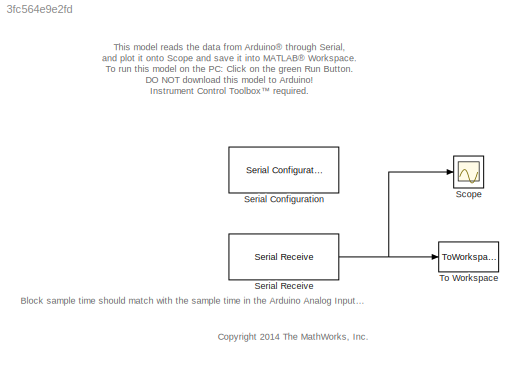
MODEL slx_3fc564e9e2fd
KIND model
BLOCK [Scope] Scope
  DataFormat = StructureWithTime
  Floating = off
  NumInputPorts = 1
  Ports = [1]
  SampleTime = 0
  ShowLegends = off
  TimeRange = 10
  YMax = 150
  YMin = 0
BLOCK [Reference] Serial Configuration  REF=instrumentlib/Serial Configuration
  BaudRate = 9600
  ByteOrder = LittleEndian
  ComPort = COM21
  ComPortMenu = <Please select a port...>
  DataBits = 8
  FlowControl = none
  ObjConstructor = serial('COM21');
  Parity = none
  Ports = []
  Priority = -200000
  SourceBlock = instrumentlib/Serial Configuration
  SourceType = Serial Configuration
  StopBits = 1
  Timeout = 10
BLOCK [Reference] Serial Receive  REF=instrumentlib/Serial Receive
  ActionDataUnavailable = Error
  ComPort = COM21
  ComPortMenu = <Please select a port...>
  CustomValue = 300
  DataSize = 1
  DataType = uint8
  EnableBlockingMode = on
  ObjConstructor = serial('COM21');
  Ports = [0, 1]
  SampleTime = 0.02
  SourceBlock = instrumentlib/Serial Receive
  SourceType = Serial Receive
  Terminator = <none>
BLOCK [ToWorkspace] To Workspace
  FixptAsFi = on
  MaxDataPoints = inf
  Ports = [1]
  SampleTime = -1
  Save2DSignal = 3-D array (concatenate along third dimension)
  SaveFormat = Structure With Time
  VariableName = ArduinoData
ANNOTATION (root): This model reads the data from Arduino ® through Serial, and plot it onto Scope and save it into MATLAB ® Workspace. To run this model on the PC: Click on the green Run Button. DO NOT download this model to Arduino! Instrument Control Toolbox ™ required.
ANNOTATION (root): Block sample time should match with the sample time in the Arduino Analog Input block
ANNOTATION (root): <copyright redacted>
NET Serial Receive:1 -> Scope:1, To Workspace:1
note: NET lines group one-source signal fan-out (src -> all destinations, sorted); 1:1 wires keep LINE
